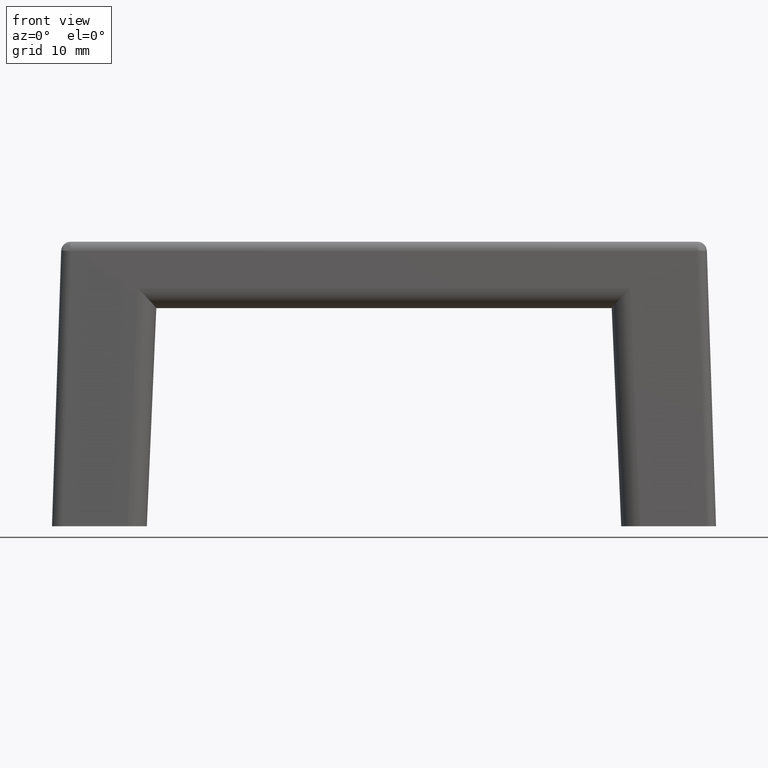
[diagram: clean part render]
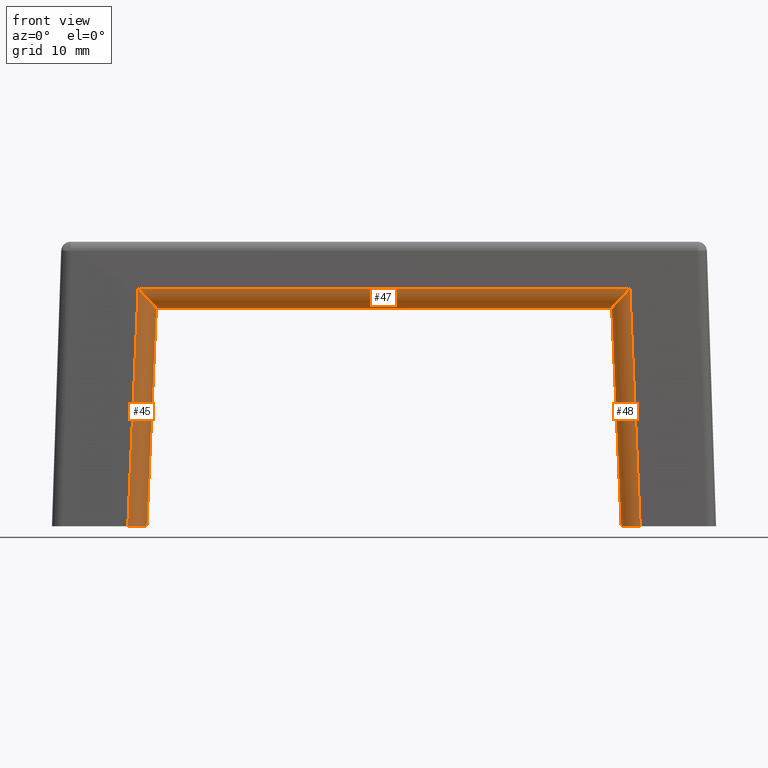
[diagram: same view with one multi-face feature highlighted, each face labeled with its STEP entity id]
A machine part, front view. The highlighted faces form ONE feature: a constant-radius fillet chain: 3 tangent blend faces with common blend radius 2 mm. The faces share edges in the B-rep.
Their STEP definitions:
[1] entity #47 (Cylinder):
#47=ADVANCED_FACE('',(#145),#144,.T.);
#144=CYLINDRICAL_SURFACE('',#480,2.00000000000E+00);
#145=FACE_OUTER_BOUND('',#481,.T.);
#477=CARTESIAN_POINT('',(-2.72430732583E+01,-3.16535440768E+00,2.50000000000E+01));
#478=DIRECTION('',(-1.00000000000E+00,3.19027149509E-15,3.10014488253E-15));
#479=DIRECTION('',(2.94729518568E-15,9.97150111989E-01,-7.54430524314E-02));
#480=AXIS2_PLACEMENT_3D('',#477,#478,#479);
#481=EDGE_LOOP('',(#676,#677,#678,#679,#680,#681));
#676=ORIENTED_EDGE('',*,*,#832,.T.);
#677=ORIENTED_EDGE('',*,*,#833,.F.);
#678=ORIENTED_EDGE('',*,*,#826,.F.);
#679=ORIENTED_EDGE('',*,*,#834,.F.);
#680=ORIENTED_EDGE('',*,*,#835,.F.);
#681=ORIENTED_EDGE('',*,*,#836,.F.);
#826=EDGE_CURVE('',#1000,#1001,#1002,.T.);
#832=EDGE_CURVE('',#1040,#1041,#1042,.T.);
#833=EDGE_CURVE('',#1001,#1041,#1048,.T.);
#834=EDGE_CURVE('',#1054,#1000,#1055,.T.);
#835=EDGE_CURVE('',#1061,#1054,#1062,.T.);
#836=EDGE_CURVE('',#1040,#1061,#1068,.T.);
#1000=VERTEX_POINT('',#1491);
#1001=VERTEX_POINT('',#1492);
#1002=(BOUNDED_CURVE() B_SPLINE_CURVE(2,(#1493,#1494,#1495,#1496,#1497),.UNSPECIFIED.,.F.,.F.) B_SPLINE_CURVE_WITH_KNOTS((3,2,3),(0.00000000000E+00,5.00000000000E-01,1.00000000000E+00),.UNSPECIFIED.) CURVE() GEOMETRIC_REPRESENTATION_ITEM() RATIONAL_B_SPLINE_CURVE((1.00000000000E+00,9.23741005897E-01,1.00000000000E+00,9.23741005897E-01,1.00000000000E+00)) REPRESENTATION_ITEM('') );
#1040=VERTEX_POINT('',#1519);
#1041=VERTEX_POINT('',#1520);
#1042=(BOUNDED_CURVE() B_SPLINE_CURVE(2,(#1521,#1522,#1523,#1524,#1525),.UNSPECIFIED.,.F.,.F.) B_SPLINE_CURVE_WITH_KNOTS((3,2,3),(0.00000000000E+00,5.00000000000E-01,1.00000000000E+00),.UNSPECIFIED.) CURVE() GEOMETRIC_REPRESENTATION_ITEM() RATIONAL_B_SPLINE_CURVE((1.00000000000E+00,9.23741007598E-01,1.00000000000E+00,9.23741007598E-01,1.00000000000E+00)) REPRESENTATION_ITEM('') );
#1048=LINE('',#1526,#1527);
#1054=VERTEX_POINT('',#1529);
#1055=CIRCLE('',#1533,1.99811399676E+00);
#1061=VERTEX_POINT('',#1534);
#1062=LINE('',#1535,#1536);
#1068=CIRCLE('',#1541,1.99811555696E+00);
#1491=CARTESIAN_POINT('',(-2.39999558109E+01,-3.22910674841E+00,2.30010163485E+01));
#1492=CARTESIAN_POINT('',(-2.59149329449E+01,-5.16424368668E+00,2.50666457074E+01));
#1493=CARTESIAN_POINT('',(-2.39999558109E+01,-3.22910674841E+00,2.30010163485E+01));
#1494=CARTESIAN_POINT('',(-2.39988065017E+01,-4.05796040321E+00,2.30274504619E+01));
#1495=CARTESIAN_POINT('',(-2.45598584785E+01,-4.62491889945E+00,2.36326406857E+01));
#1496=CARTESIAN_POINT('',(-2.51209104553E+01,-5.19187739569E+00,2.42378309095E+01));
#1497=CARTESIAN_POINT('',(-2.59149329449E+01,-5.16424368668E+00,2.50666457074E+01));
#1519=CARTESIAN_POINT('',(2.39999558109E+01,-3.22910674841E+00,2.30010163485E+01));
#1520=CARTESIAN_POINT('',(2.59149329449E+01,-5.16424368668E+00,2.50666457074E+01));
#1521=CARTESIAN_POINT('',(2.39999558109E+01,-3.22910674841E+00,2.30010163485E+01));
#1522=CARTESIAN_POINT('',(2.39988065017E+01,-4.05796039281E+00,2.30274504616E+01));
#1523=CARTESIAN_POINT('',(2.45598584665E+01,-4.62491888731E+00,2.36326406728E+01));
#1524=CARTESIAN_POINT('',(2.51209104313E+01,-5.19187738181E+00,2.42378308839E+01));
#1525=CARTESIAN_POINT('',(2.59149329449E+01,-5.16424368668E+00,2.50666457074E+01));
#1526=CARTESIAN_POINT('',(-2.59149329449E+01,-5.16424368668E+00,2.50666457074E+01));
#1527=VECTOR('',#1528,5.18298658898E+01);
#1528=DIRECTION('',(1.00000000000E+00,0.00000000000E+00,0.00000000000E+00));
#1529=CARTESIAN_POINT('',(-2.40000000000E+01,-3.16535440768E+00,2.30000000000E+01));
#1530=CARTESIAN_POINT('',(-2.39132074743E+01,-3.16535439619E+00,2.49962280936E+01));
#1531=DIRECTION('',(-9.99056158358E-01,-1.37585393456E-13,4.34372242181E-02));
#1532=DIRECTION('',(4.34372242181E-02,5.74926585610E-09,9.99056158358E-01));
#1533=AXIS2_PLACEMENT_3D('',#1530,#1531,#1532);
#1534=CARTESIAN_POINT('',(2.40000000000E+01,-3.16535440768E+00,2.30000000000E+01));
#1535=CARTESIAN_POINT('',(2.40000000000E+01,-3.16535440768E+00,2.30000000000E+01));
#1536=VECTOR('',#1537,4.80000000000E+01);
#1537=DIRECTION('',(-1.00000000000E+00,0.00000000000E+00,0.00000000000E+00));
#1538=CARTESIAN_POINT('',(2.39132074063E+01,-3.16535436553E+00,2.49962296522E+01));
#1539=DIRECTION('',(9.99056158353E-01,8.93320790604E-13,4.34372243208E-02));
#1540=DIRECTION('',(-4.34151089471E-02,3.19062541975E-02,9.98547504758E-01));
#1541=AXIS2_PLACEMENT_3D('',#1538,#1539,#1540);
[2] entity #45 (Cylinder):
#45=ADVANCED_FACE('',(#125),#124,.T.);
#124=CYLINDRICAL_SURFACE('',#470,2.00000000000E+00);
#125=FACE_OUTER_BOUND('',#471,.T.);
#467=CARTESIAN_POINT('',(-2.70327146190E+01,-4.02252697653E+00,-7.08978503621E-01));
#468=DIRECTION('',(-4.34131464355E-02,-3.32914370627E-02,-9.98502368017E-01));
#469=DIRECTION('',(4.21335063078E-02,9.98494435643E-01,-3.51230641650E-02));
#470=AXIS2_PLACEMENT_3D('',#467,#468,#469);
#471=EDGE_LOOP('',(#668,#669,#670,#671));
#668=ORIENTED_EDGE('',*,*,#826,.T.);
#669=ORIENTED_EDGE('',*,*,#827,.F.);
#670=ORIENTED_EDGE('',*,*,#828,.F.);
#671=ORIENTED_EDGE('',*,*,#829,.F.);
#826=EDGE_CURVE('',#1000,#1001,#1002,.T.);
#827=EDGE_CURVE('',#1008,#1001,#1009,.T.);
#828=EDGE_CURVE('',#1015,#1008,#1016,.T.);
#829=EDGE_CURVE('',#1000,#1015,#1022,.T.);
#1000=VERTEX_POINT('',#1491);
#1001=VERTEX_POINT('',#1492);
#1002=(BOUNDED_CURVE() B_SPLINE_CURVE(2,(#1493,#1494,#1495,#1496,#1497),.UNSPECIFIED.,.F.,.F.) B_SPLINE_CURVE_WITH_KNOTS((3,2,3),(0.00000000000E+00,5.00000000000E-01,1.00000000000E+00),.UNSPECIFIED.) CURVE() GEOMETRIC_REPRESENTATION_ITEM() RATIONAL_B_SPLINE_CURVE((1.00000000000E+00,9.23741005897E-01,1.00000000000E+00,9.23741005897E-01,1.00000000000E+00)) REPRESENTATION_ITEM('') );
#1008=VERTEX_POINT('',#1498);
#1009=LINE('',#1499,#1500);
#1015=VERTEX_POINT('',#1502);
#1016=(BOUNDED_CURVE() B_SPLINE_CURVE(2,(#1503,#1504,#1505,#1506,#1507),.UNSPECIFIED.,.F.,.F.) B_SPLINE_CURVE_WITH_KNOTS((3,2,3),(0.00000000000E+00,5.00000000000E-01,1.00000000000E+00),.UNSPECIFIED.) CURVE() GEOMETRIC_REPRESENTATION_ITEM() RATIONAL_B_SPLINE_CURVE((1.00000000000E+00,9.23740992977E-01,1.00000000000E+00,9.23740992977E-01,1.00000000000E+00)) REPRESENTATION_ITEM('') );
#1022=LINE('',#1508,#1509);
#1491=CARTESIAN_POINT('',(-2.39999558109E+01,-3.22910674841E+00,2.30010163485E+01));
#1492=CARTESIAN_POINT('',(-2.59149329449E+01,-5.16424368668E+00,2.50666457074E+01));
#1493=CARTESIAN_POINT('',(-2.39999558109E+01,-3.22910674841E+00,2.30010163485E+01));
#1494=CARTESIAN_POINT('',(-2.39988065017E+01,-4.05796040321E+00,2.30274504619E+01));
#1495=CARTESIAN_POINT('',(-2.45598584785E+01,-4.62491889945E+00,2.36326406857E+01));
#1496=CARTESIAN_POINT('',(-2.51209104553E+01,-5.19187739569E+00,2.42378309095E+01));
#1497=CARTESIAN_POINT('',(-2.59149329449E+01,-5.16424368668E+00,2.50666457074E+01));
#1498=CARTESIAN_POINT('',(-2.70047871061E+01,-6.00000000000E+00,0.00000000000E+00));
#1499=CARTESIAN_POINT('',(-2.70047871061E+01,-6.00000000000E+00,0.00000000000E+00));
#1500=VECTOR('',#1501,2.51042426240E+01);
#1501=DIRECTION('',(4.34131464355E-02,3.32914370627E-02,9.98502368017E-01));
#1502=CARTESIAN_POINT('',(-2.50000000000E+01,-3.99599214866E+00,0.00000000000E+00));
#1503=CARTESIAN_POINT('',(-2.50000000000E+01,-3.99599214866E+00,0.00000000000E+00));
#1504=CARTESIAN_POINT('',(-2.50000000000E+01,-4.82572723213E+00,0.00000000000E+00));
#1505=CARTESIAN_POINT('',(-2.55873646908E+01,-5.41286361607E+00,0.00000000000E+00));
#1506=CARTESIAN_POINT('',(-2.61747293817E+01,-6.00000000000E+00,0.00000000000E+00));
#1507=CARTESIAN_POINT('',(-2.70047871061E+01,-6.00000000000E+00,0.00000000000E+00));
#1508=CARTESIAN_POINT('',(-2.39999558109E+01,-3.22910674841E+00,2.30010163485E+01));
#1509=VECTOR('',#1510,2.30355150726E+01);
#1510=DIRECTION('',(-4.34131464355E-02,-3.32914370627E-02,-9.98502368017E-01));
[3] entity #48 (Cylinder):
#48=ADVANCED_FACE('',(#155),#154,.T.);
#154=CYLINDRICAL_SURFACE('',#485,2.00000000000E+00);
#155=FACE_OUTER_BOUND('',#486,.T.);
#482=CARTESIAN_POINT('',(2.58870054320E+01,-3.14393815215E+00,2.56423327963E+01));
#483=DIRECTION('',(-4.34131464355E-02,3.32914370627E-02,9.98502368017E-01));
#484=DIRECTION('',(-4.21335063078E-02,9.98494435643E-01,-3.51230641651E-02));
#485=AXIS2_PLACEMENT_3D('',#482,#483,#484);
#486=EDGE_LOOP('',(#682,#683,#684,#685));
#682=ORIENTED_EDGE('',*,*,#837,.F.);
#683=ORIENTED_EDGE('',*,*,#838,.F.);
#684=ORIENTED_EDGE('',*,*,#832,.F.);
#685=ORIENTED_EDGE('',*,*,#839,.F.);
#832=EDGE_CURVE('',#1040,#1041,#1042,.T.);
#837=EDGE_CURVE('',#1074,#1075,#1076,.T.);
#838=EDGE_CURVE('',#1041,#1074,#1082,.T.);
#839=EDGE_CURVE('',#1075,#1040,#1088,.T.);
#1040=VERTEX_POINT('',#1519);
#1041=VERTEX_POINT('',#1520);
#1042=(BOUNDED_CURVE() B_SPLINE_CURVE(2,(#1521,#1522,#1523,#1524,#1525),.UNSPECIFIED.,.F.,.F.) B_SPLINE_CURVE_WITH_KNOTS((3,2,3),(0.00000000000E+00,5.00000000000E-01,1.00000000000E+00),.UNSPECIFIED.) CURVE() GEOMETRIC_REPRESENTATION_ITEM() RATIONAL_B_SPLINE_CURVE((1.00000000000E+00,9.23741007598E-01,1.00000000000E+00,9.23741007598E-01,1.00000000000E+00)) REPRESENTATION_ITEM('') );
#1074=VERTEX_POINT('',#1542);
#1075=VERTEX_POINT('',#1543);
#1076=(BOUNDED_CURVE() B_SPLINE_CURVE(2,(#1544,#1545,#1546,#1547,#1548),.UNSPECIFIED.,.F.,.F.) B_SPLINE_CURVE_WITH_KNOTS((3,2,3),(0.00000000000E+00,5.00000000000E-01,1.00000000000E+00),.UNSPECIFIED.) CURVE() GEOMETRIC_REPRESENTATION_ITEM() RATIONAL_B_SPLINE_CURVE((1.00000000000E+00,9.23740992977E-01,1.00000000000E+00,9.23740992977E-01,1.00000000000E+00)) REPRESENTATION_ITEM('') );
#1082=LINE('',#1549,#1550);
#1088=LINE('',#1552,#1553);
#1519=CARTESIAN_POINT('',(2.39999558109E+01,-3.22910674841E+00,2.30010163485E+01));
#1520=CARTESIAN_POINT('',(2.59149329449E+01,-5.16424368668E+00,2.50666457074E+01));
#1521=CARTESIAN_POINT('',(2.39999558109E+01,-3.22910674841E+00,2.30010163485E+01));
#1522=CARTESIAN_POINT('',(2.39988065017E+01,-4.05796039281E+00,2.30274504616E+01));
#1523=CARTESIAN_POINT('',(2.45598584665E+01,-4.62491888731E+00,2.36326406728E+01));
#1524=CARTESIAN_POINT('',(2.51209104313E+01,-5.19187738181E+00,2.42378308839E+01));
#1525=CARTESIAN_POINT('',(2.59149329449E+01,-5.16424368668E+00,2.50666457074E+01));
#1542=CARTESIAN_POINT('',(2.70047871061E+01,-6.00000000000E+00,0.00000000000E+00));
#1543=CARTESIAN_POINT('',(2.50000000000E+01,-3.99599214866E+00,0.00000000000E+00));
#1544=CARTESIAN_POINT('',(2.70047871061E+01,-6.00000000000E+00,0.00000000000E+00));
#1545=CARTESIAN_POINT('',(2.61747293817E+01,-6.00000000000E+00,0.00000000000E+00));
#1546=CARTESIAN_POINT('',(2.55873646908E+01,-5.41286361607E+00,0.00000000000E+00));
#1547=CARTESIAN_POINT('',(2.50000000000E+01,-4.82572723213E+00,0.00000000000E+00));
#1548=CARTESIAN_POINT('',(2.50000000000E+01,-3.99599214866E+00,0.00000000000E+00));
#1549=CARTESIAN_POINT('',(2.59149329449E+01,-5.16424368668E+00,2.50666457074E+01));
#1550=VECTOR('',#1551,2.51042426240E+01);
#1551=DIRECTION('',(4.34131464355E-02,-3.32914370627E-02,-9.98502368017E-01));
#1552=CARTESIAN_POINT('',(2.50000000000E+01,-3.99599214866E+00,0.00000000000E+00));
#1553=VECTOR('',#1554,2.30355150726E+01);
#1554=DIRECTION('',(-4.34131464355E-02,3.32914370627E-02,9.98502368017E-01));